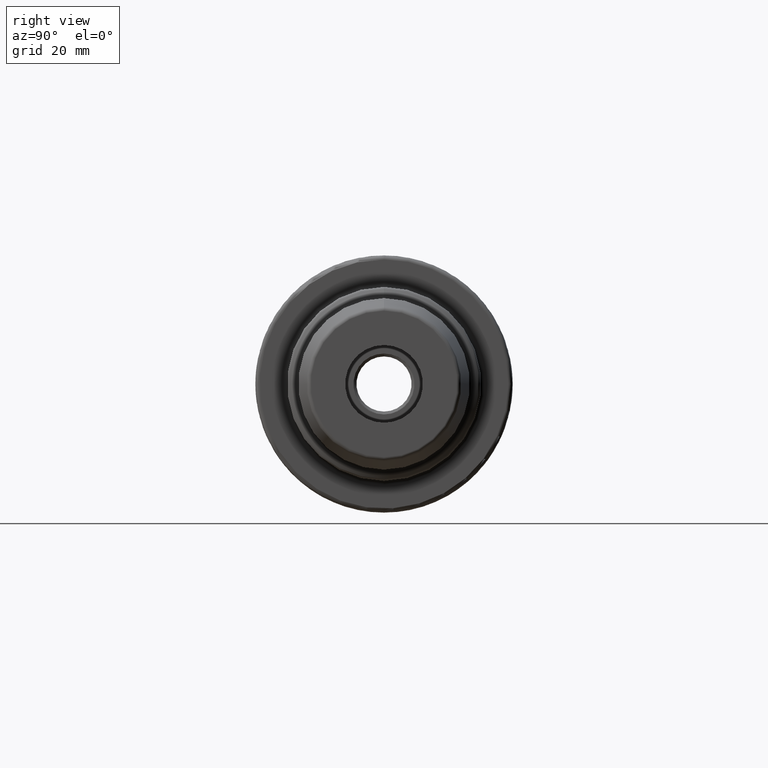
[diagram: clean part render]
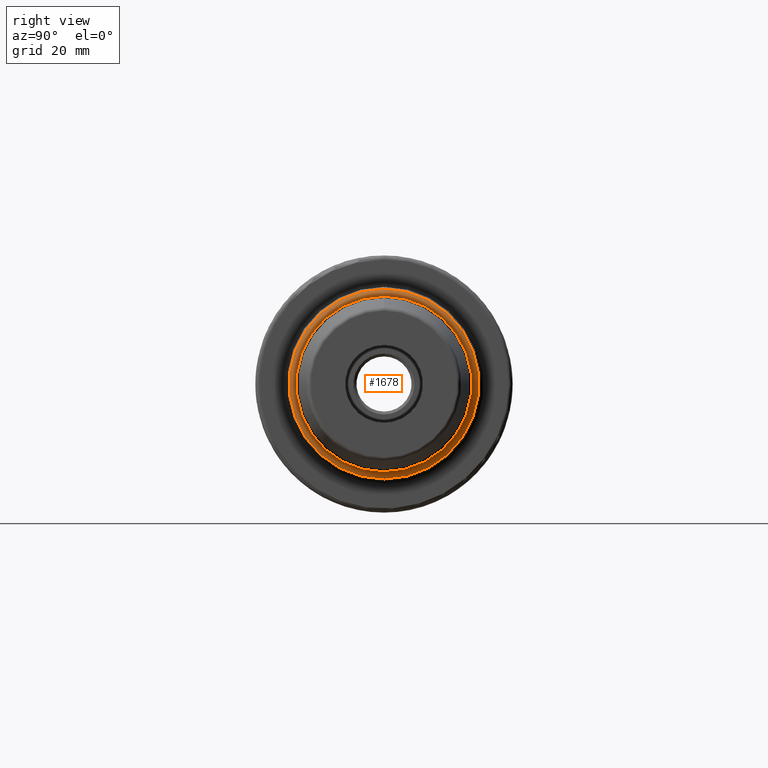
[diagram: same view with one face highlighted and labeled with its STEP entity id]
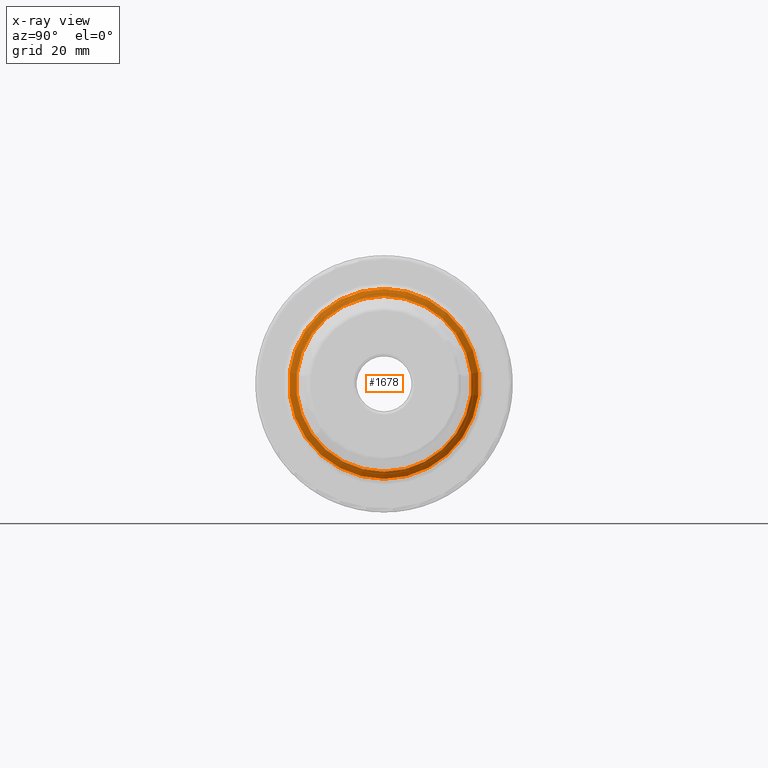
[diagram: x-ray of the same camera — body ghosted, the highlighted face saturated]
A machine part, right view. The second image highlights one B-rep face of the part: STEP entity #1678.
The next image is the same camera in x-ray: the body ghosted, the highlighted face saturated — about 0% of this face is hidden behind the body in this view.
In plain terms, the highlighted conical surface has half-angle 60 deg.
Its self-contained STEP definition (entity closure, byte-faithful):
#123=CONICAL_SURFACE('',#1852,22.375,1.0471975511966);
#159=FACE_OUTER_BOUND('',#252,.T.);
#252=EDGE_LOOP('',(#1233,#1234,#1235,#1236,#1237,#1238));
#344=LINE('',#2855,#414);
#414=VECTOR('',#2220,22.375);
#532=CIRCLE('',#1849,21.5);
#534=CIRCLE('',#1851,21.5);
#535=CIRCLE('',#1853,23.25);
#536=CIRCLE('',#1854,23.25);
#680=VERTEX_POINT('',#2848);
#681=VERTEX_POINT('',#2849);
#682=VERTEX_POINT('',#2854);
#683=VERTEX_POINT('',#2856);
#891=EDGE_CURVE('',#680,#681,#532,.T.);
#893=EDGE_CURVE('',#681,#680,#534,.T.);
#894=EDGE_CURVE('',#681,#682,#344,.T.);
#895=EDGE_CURVE('',#683,#682,#535,.T.);
#896=EDGE_CURVE('',#682,#683,#536,.T.);
#1233=ORIENTED_EDGE('',*,*,#891,.F.);
#1234=ORIENTED_EDGE('',*,*,#893,.F.);
#1235=ORIENTED_EDGE('',*,*,#894,.T.);
#1236=ORIENTED_EDGE('',*,*,#895,.F.);
#1237=ORIENTED_EDGE('',*,*,#896,.F.);
#1238=ORIENTED_EDGE('',*,*,#894,.F.);
#1678=ADVANCED_FACE('',(#159),#123,.T.);
#1849=AXIS2_PLACEMENT_3D('',#2850,#2212,#2213);
#1851=AXIS2_PLACEMENT_3D('',#2852,#2216,#2217);
#1852=AXIS2_PLACEMENT_3D('',#2853,#2218,#2219);
#1853=AXIS2_PLACEMENT_3D('',#2857,#2221,#2222);
#1854=AXIS2_PLACEMENT_3D('',#2858,#2223,#2224);
#2212=DIRECTION('center_axis',(1.,0.,0.));
#2213=DIRECTION('ref_axis',(0.,0.,1.));
#2216=DIRECTION('center_axis',(1.,0.,0.));
#2217=DIRECTION('ref_axis',(0.,0.,1.));
#2218=DIRECTION('center_axis',(-1.,0.,0.));
#2219=DIRECTION('ref_axis',(0.,0.,-1.));
#2220=DIRECTION('',(-0.499999999999999,-1.06057523872491E-16,0.866025403784439));
#2221=DIRECTION('center_axis',(-1.,0.,0.));
#2222=DIRECTION('ref_axis',(0.,0.,1.));
#2223=DIRECTION('center_axis',(-1.,0.,0.));
#2224=DIRECTION('ref_axis',(0.,0.,1.));
#2848=CARTESIAN_POINT('',(49.7113248654052,0.,-21.5));
#2849=CARTESIAN_POINT('',(49.7113248654052,-2.63299061816681E-15,21.5));
#2850=CARTESIAN_POINT('Origin',(49.7113248654052,-2.63299061816681E-15,
0.));
#2852=CARTESIAN_POINT('Origin',(49.7113248654052,-2.63299061816681E-15,
0.));
#2853=CARTESIAN_POINT('Origin',(49.2061433798643,0.,0.));
#2854=CARTESIAN_POINT('',(48.7009618943233,-2.8473038080176E-15,23.25));
#2855=CARTESIAN_POINT('',(49.2061433798643,-2.7401472130922E-15,22.375));
#2856=CARTESIAN_POINT('',(48.7009618943233,-5.69460761603519E-15,-23.25));
#2857=CARTESIAN_POINT('Origin',(48.7009618943233,-2.84730380801759E-15,
0.));
#2858=CARTESIAN_POINT('Origin',(48.7009618943233,-2.84730380801759E-15,
0.));